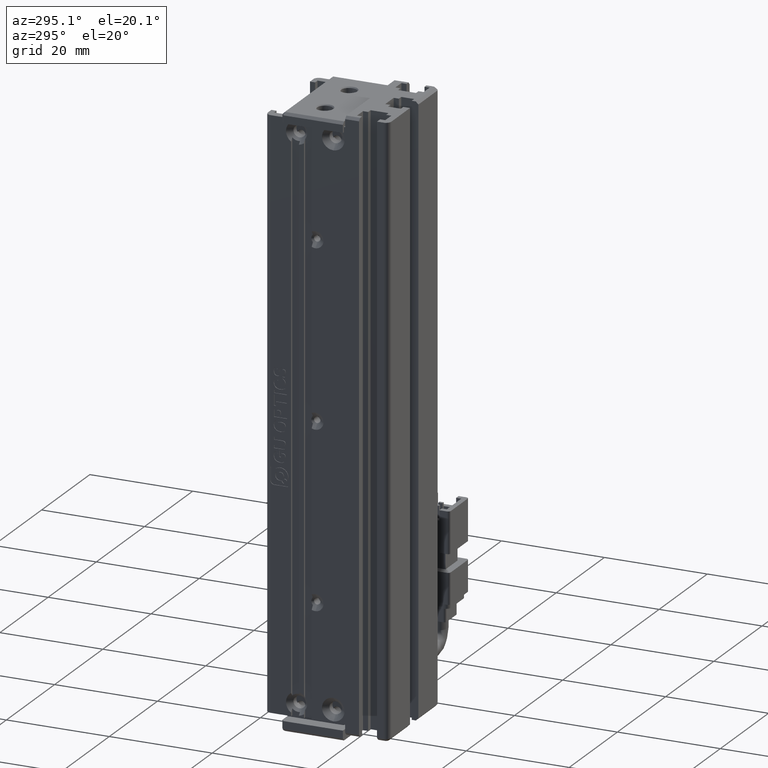
[diagram: clean part render]
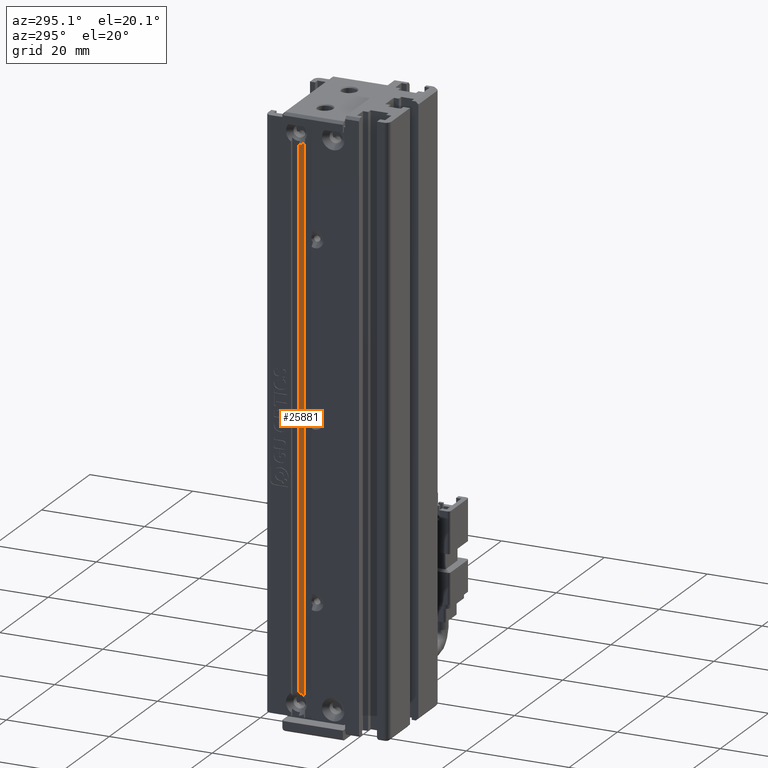
[diagram: same view with one face highlighted and labeled with its STEP entity id]
A machine part, auxiliary view. The second image highlights one B-rep face of the part: STEP entity #25881.
In plain terms, the highlighted planar face has unit normal (-1, 0, 0).
Its self-contained STEP definition (entity closure, byte-faithful):
#3044 = FACE_OUTER_BOUND ( 'NONE', #57301, .T. ) ;
#3116 = DIRECTION ( 'NONE',  ( 0.0000000000000000000, -1.577021341815814100E-015, 1.000000000000000000 ) ) ;
#3313 = VERTEX_POINT ( 'NONE', #72261 ) ;
#6898 = CARTESIAN_POINT ( 'NONE',  ( 30.82661489661622100, 28.54432492616541900, -60.50634592792314200 ) ) ;
#7050 = CIRCLE ( 'NONE', #27557, 2.199999999973889500 ) ;
#7755 = CARTESIAN_POINT ( 'NONE',  ( 30.82661489659529900, 6.837390071471488400, -56.00634592792313500 ) ) ;
#8281 = CARTESIAN_POINT ( 'NONE',  ( 30.82661489659530600, 28.24432492616541500, -56.00634592792313500 ) ) ;
#8346 = VERTEX_POINT ( 'NONE', #21795 ) ;
#9147 = DIRECTION ( 'NONE',  ( 1.000000000000000000, -0.0000000000000000000, -0.0000000000000000000 ) ) ;
#11360 = VERTEX_POINT ( 'NONE', #44017 ) ;
#13186 = DIRECTION ( 'NONE',  ( 0.0000000000000000000, 3.154042683673330200E-015, 1.000000000000000000 ) ) ;
#13412 = DIRECTION ( 'NONE',  ( 0.0000000000000000000, -0.0000000000000000000, -1.000000000000000000 ) ) ;
#20183 = CARTESIAN_POINT ( 'NONE',  ( 30.82661489661622100, 28.54432492616541900, -167.5063459279231200 ) ) ;
#20688 = ORIENTED_EDGE ( 'NONE', *, *, #46880, .T. ) ;
#21795 = CARTESIAN_POINT ( 'NONE',  ( 30.82661489659838200, 27.24432492616542200, -62.28116986280672800 ) ) ;
#23055 = LINE ( 'NONE', #62713, #24813 ) ;
#23431 = EDGE_CURVE ( 'NONE', #8346, #3313, #34274, .T. ) ;
#24437 = ORIENTED_EDGE ( 'NONE', *, *, #23431, .T. ) ;
#24813 = VECTOR ( 'NONE', #68574, 1000.000000000000000 ) ;
#25341 = EDGE_CURVE ( 'NONE', #11360, #8346, #23055, .T. ) ;
#25881 = ADVANCED_FACE ( 'NONE', ( #3044 ), #30564, .T. ) ;
#27485 = LINE ( 'NONE', #8281, #59106 ) ;
#27557 = AXIS2_PLACEMENT_3D ( 'NONE', #20183, #9147, #3116 ) ;
#30564 = PLANE ( 'NONE',  #70003 ) ;
#32739 = AXIS2_PLACEMENT_3D ( 'NONE', #6898, #58111, #13186 ) ;
#33068 = EDGE_CURVE ( 'NONE', #34649, #11360, #7050, .T. ) ;
#34274 = CIRCLE ( 'NONE', #32739, 2.199999999944801700 ) ;
#34649 = VERTEX_POINT ( 'NONE', #69351 ) ;
#44017 = CARTESIAN_POINT ( 'NONE',  ( 30.82661489660576100, 27.24432492616542200, -165.7315219930126500 ) ) ;
#46880 = EDGE_CURVE ( 'NONE', #3313, #34649, #27485, .T. ) ;
#57301 = EDGE_LOOP ( 'NONE', ( #24437, #20688, #58008, #70764 ) ) ;
#57818 = DIRECTION ( 'NONE',  ( 0.0000000000000000000, 0.0000000000000000000, 1.000000000000000000 ) ) ;
#58008 = ORIENTED_EDGE ( 'NONE', *, *, #33068, .T. ) ;
#58111 = DIRECTION ( 'NONE',  ( 1.000000000000000000, -0.0000000000000000000, -0.0000000000000000000 ) ) ;
#59106 = VECTOR ( 'NONE', #13412, 1000.000000000000000 ) ;
#62713 = CARTESIAN_POINT ( 'NONE',  ( 30.82661489659529900, 27.24432492616542200, -56.00634592792313500 ) ) ;
#68574 = DIRECTION ( 'NONE',  ( 0.0000000000000000000, 0.0000000000000000000, 1.000000000000000000 ) ) ;
#69351 = CARTESIAN_POINT ( 'NONE',  ( 30.82661489660742400, 28.24432492616541500, -165.3268964561702600 ) ) ;
#69680 = DIRECTION ( 'NONE',  ( -1.000000000000000000, 0.0000000000000000000, 0.0000000000000000000 ) ) ;
#70003 = AXIS2_PLACEMENT_3D ( 'NONE', #7755, #69680, #57818 ) ;
#70764 = ORIENTED_EDGE ( 'NONE', *, *, #25341, .T. ) ;
#72261 = CARTESIAN_POINT ( 'NONE',  ( 30.82661489660576500, 28.24432492616541500, -62.68579539964832000 ) ) ;